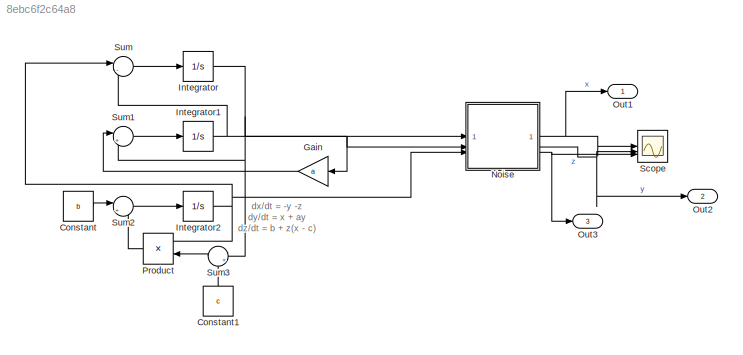
MODEL slx_8ebc6f2c64a8
KIND model
CONFIG AbsTol = auto
CONFIG EnableMultiTasking = off
CONFIG FixedStep = 10e-4
CONFIG MaxStep = auto
CONFIG MinStep = auto
CONFIG PreLoadFcn = run('Rossler_model_params.m');\n
CONFIG RelTol = 1e-3
CONFIG SampleTimeConstraint = Unconstrained
CONFIG SolverName = FixedStepAuto
CONFIG StartTime = 0.0
CONFIG StopTime = StopTime
BLOCK [Constant] Constant
  Value = b
BLOCK [Constant] Constant1
  NameLocation = right
  Value = c
BLOCK [Gain] Gain
  Gain = a
  NameLocation = top
BLOCK [Integrator] Integrator
BLOCK [Integrator] Integrator1
BLOCK [Integrator] Integrator2
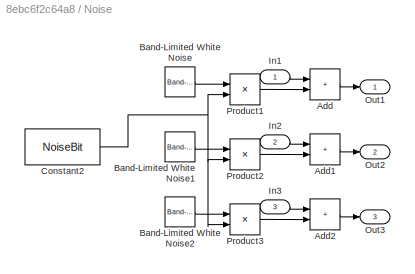
BLOCK [SubSystem] Noise
BLOCK [Sum] Noise/Add
  IconShape = rectangular
BLOCK [Sum] Noise/Add1
  IconShape = rectangular
BLOCK [Sum] Noise/Add2
  IconShape = rectangular
BLOCK [Reference] Noise/Band-Limited White Noise  REF=simulink/Sources/Band-Limited
White Noise
  SourceBlock = simulink/Sources/Band-Limited\nWhite Noise
  SourceType = Band-Limited White Noise.
BLOCK [Reference] Noise/Band-Limited White Noise1  REF=simulink/Sources/Band-Limited
White Noise
  SourceBlock = simulink/Sources/Band-Limited\nWhite Noise
  SourceType = Band-Limited White Noise.
BLOCK [Reference] Noise/Band-Limited White Noise2  REF=simulink/Sources/Band-Limited
White Noise
  SourceBlock = simulink/Sources/Band-Limited\nWhite Noise
  SourceType = Band-Limited White Noise.
BLOCK [Constant] Noise/Constant2
  Value = NoiseBit
BLOCK [Inport] Noise/In1
BLOCK [Inport] Noise/In2
  Port = 2
BLOCK [Inport] Noise/In3
  Port = 3
BLOCK [Outport] Noise/Out1
BLOCK [Outport] Noise/Out2
  Port = 2
BLOCK [Outport] Noise/Out3
  Port = 3
BLOCK [Product] Noise/Product1
BLOCK [Product] Noise/Product2
BLOCK [Product] Noise/Product3
BLOCK [Outport] Out1
  IconDisplay = Signal name
  SignalName = x
BLOCK [Outport] Out2
  IconDisplay = Signal name
  Port = 2
  SignalName = y
BLOCK [Outport] Out3
  IconDisplay = Signal name
  Port = 3
  SignalName = z
BLOCK [Product] Product
  NameLocation = top
BLOCK [Scope] Scope
  Floating = off
  NumInputPorts = 3
  ScopeSpecificationString = Simulink.scopes.TimeScopeBlockCfg('CurrentConfiguration', extmgr.ConfigurationSet(extmgr.Configuration('Core','General UI',true),extmgr.Configuration('Core','Source UI',true),extmgr.Configuration('Sources','WiredSimulink',true),extmgr.Configuration('Visuals','Time Domain',true,'SerializedDisplays',{struct('MinYLimReal','-14.82708','MaxYLimReal','26.33889','YLabelReal','','MinYLimMag','0.00000','Ma...<+1404ch>
BLOCK [Sum] Sum
  Inputs = |--
BLOCK [Sum] Sum1
  Inputs = |++
BLOCK [Sum] Sum2
  Inputs = |++
BLOCK [Sum] Sum3
  Inputs = |+-
  NameLocation = top
ANNOTATION (root): dx/dt = -y -z dy/dt = x + ay dz/dt = b + z(x - c)
LINE Constant1:1 -> Sum3:2
LINE Constant:1 -> Sum2:1
LINE Gain:1 -> Sum1:1
NET Integrator1:1 -> Gain:1, Noise:2, Sum:2
NET Integrator2:1 -> Noise:3, Product:1, Sum:1
NET Integrator:1 -> Noise:1, Sum1:2, Sum3:1
LINE Noise/Add1:1 -> Noise/Out2:1
LINE Noise/Add2:1 -> Noise/Out3:1
LINE Noise/Add:1 -> Noise/Out1:1
LINE Noise/Band-Limited White Noise1:1 -> Noise/Product2:1
LINE Noise/Band-Limited White Noise2:1 -> Noise/Product3:1
LINE Noise/Band-Limited White Noise:1 -> Noise/Product1:1
NET Noise/Constant2:1 -> Noise/Product1:2, Noise/Product2:2, Noise/Product3:2
LINE Noise/In1:1 -> Noise/Add:1
LINE Noise/In2:1 -> Noise/Add1:1
LINE Noise/In3:1 -> Noise/Add2:1
LINE Noise/Product1:1 -> Noise/Add:2
LINE Noise/Product2:1 -> Noise/Add1:2
LINE Noise/Product3:1 -> Noise/Add2:2
NET Noise:1 -> Out1:1, Scope:1
NET Noise:2 -> Out2:1, Scope:2
NET Noise:3 -> Out3:1, Scope:3
LINE Product:1 -> Sum2:2
LINE Sum1:1 -> Integrator1:1
LINE Sum2:1 -> Integrator2:1
LINE Sum3:1 -> Product:2
LINE Sum:1 -> Integrator:1
note: NET lines group one-source signal fan-out (src -> all destinations, sorted); 1:1 wires keep LINE
